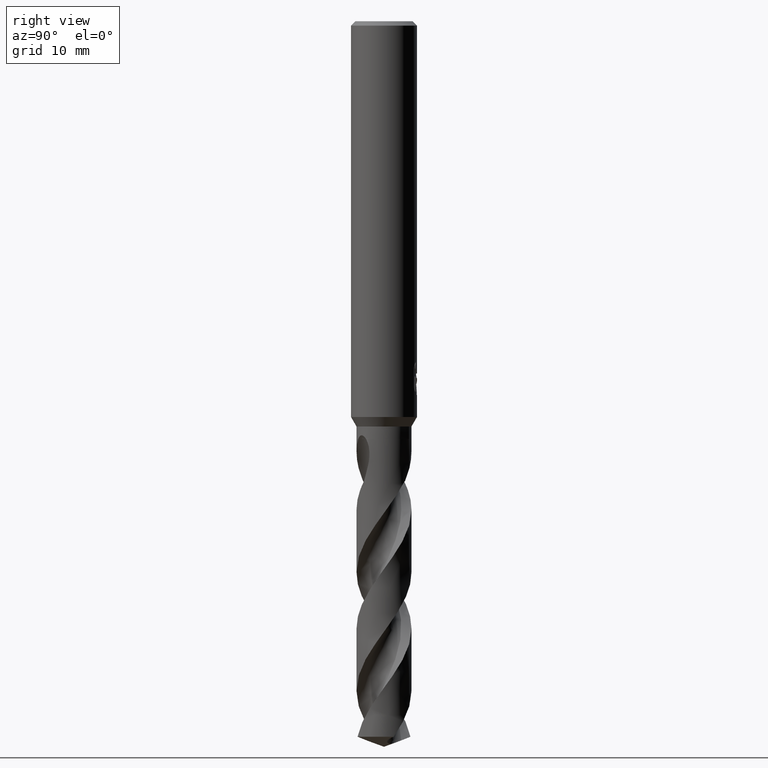
[diagram: clean part render]
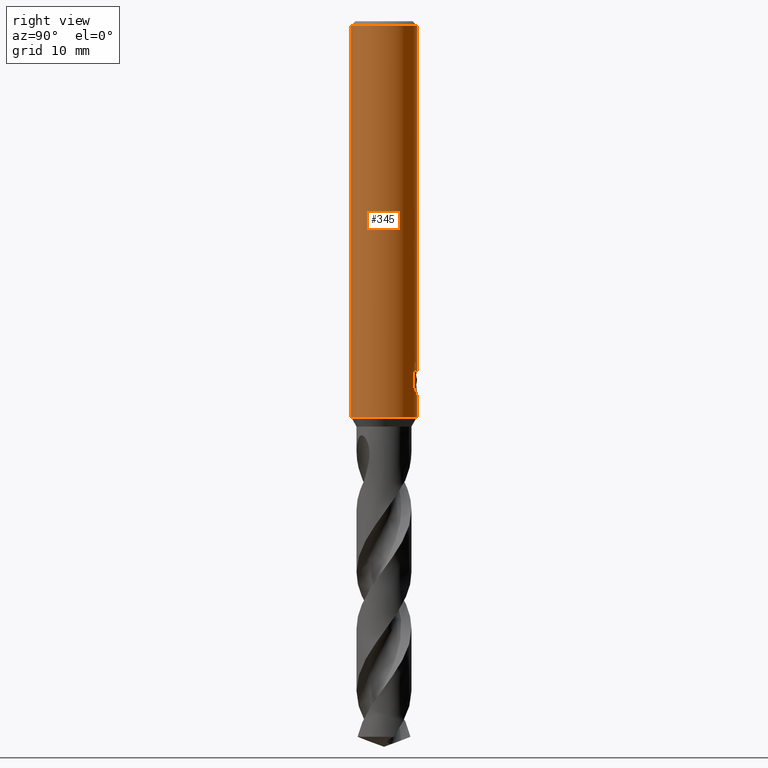
[diagram: same view with one face highlighted and labeled with its STEP entity id]
A machine part, right view. The second image highlights one B-rep face of the part: STEP entity #345.
In plain terms, the highlighted cylindrical surface (edge-blend (fillet) strip) has radius 3 mm, axis along (-0, -0, 1).
Its self-contained STEP definition (entity closure, byte-faithful):
#273=EDGE_CURVE('',#671,#275,#764,.T.);
#275=VERTEX_POINT('',#766);
#295=VERTEX_POINT('',#789);
#301=EDGE_CURVE('',#731,#353,#796,.T.);
#307=VERTEX_POINT('',#802);
#323=EDGE_CURVE('',#671,#565,#819,.T.);
#345=ADVANCED_FACE('',(#844),#845,.T.);
#353=VERTEX_POINT('',#853);
#393=EDGE_CURVE('',#417,#307,#896,.T.);
#417=VERTEX_POINT('',#921);
#427=EDGE_CURVE('',#295,#275,#933,.T.);
#459=EDGE_CURVE('',#597,#713,#969,.T.);
#465=EDGE_CURVE('',#417,#483,#975,.T.);
#483=VERTEX_POINT('',#994);
#491=EDGE_CURVE('',#307,#709,#1004,.T.);
#531=EDGE_CURVE('',#353,#565,#1049,.T.);
#565=VERTEX_POINT('',#1084);
#597=VERTEX_POINT('',#1118);
#599=EDGE_CURVE('',#709,#597,#1120,.T.);
#643=EDGE_CURVE('',#713,#731,#1170,.T.);
#671=VERTEX_POINT('',#1200);
#693=EDGE_CURVE('',#483,#295,#1223,.T.);
#709=VERTEX_POINT('',#1242);
#713=VERTEX_POINT('',#1246);
#731=VERTEX_POINT('',#1266);
#764=CIRCLE('',#1347,3.0);
#766=CARTESIAN_POINT('',(3.67381906146713E-016,-3.0,-0.399999999999999));
#789=CARTESIAN_POINT('',(3.67381906146713E-016,-3.0,-36.0));
#796=B_SPLINE_CURVE_WITH_KNOTS('',3,(#1480,#1481,#1482,#1483,#1484,#1485,#1486,#1487),.UNSPECIFIED.,.F.,.F.,(4,2,2,4),(0.629580638580865,1.25916127716173,1.57221094126725,1.88526060537277),.UNSPECIFIED.);
#802=CARTESIAN_POINT('',(0.29010312703583,2.98594041730307,-33.9998328990228));
#819=LINE('',#1625,#1626);
#844=FACE_OUTER_BOUND('',#1888,.T.);
#845=CYLINDRICAL_SURFACE('',#1889,3.0);
#853=CARTESIAN_POINT('',(0.799431726384364,2.89152363207533,-31.000000276873));
#896=B_SPLINE_CURVE_WITH_KNOTS('',3,(#2748,#2749,#2750,#2751,#2752,#2753,#2754,#2755,#2756,#2757,#2758,#2759,#2760,#2761,#2762,#2763),.UNSPECIFIED.,.F.,.F.,(4,2,2,2,2,2,2,4),(5.66023402257373,6.29060333517104,6.60504483258975,6.91948633000846,7.23392782742717,7.54836932484587,7.86141901111221,8.17446869737855),.UNSPECIFIED.);
#921=CARTESIAN_POINT('',(-2.46407913303377E-016,3.0,-34.0310253601033));
#933=LINE('',#3547,#3548);
#969=B_SPLINE_CURVE_WITH_KNOTS('',3,(#3613,#3614,#3615,#3616,#3617,#3618,#3619,#3620),.UNSPECIFIED.,.F.,.F.,(4,2,2,4),(8.17446522132897,8.48751487521068,8.80056452909238,9.43014514523744),.UNSPECIFIED.);
#975=LINE('',#3682,#3683);
#994=CARTESIAN_POINT('',(0.0,3.0,-36.0));
#1004=ELLIPSE('',#3831,9.14398372010932,3.0);
#1049=B_SPLINE_CURVE_WITH_KNOTS('',3,(#3926,#3927,#3928,#3929,#3930,#3931,#3932,#3933,#3934,#3935,#3936,#3937,#3938,#3939,#3940,#3941,#3942,#3943,#3944,#3945,#3946,#3947,#3948,#3949,#3950,#3951,#3952),.UNSPECIFIED.,.F.,.F.,(4,2,3,2,2,2,2,2,2,2,2,2,4),(-0.54422824842136,-0.27211412421068,0.0,0.272114124210678,0.544228248421357,0.817906359646673,1.09158447087199,1.36255924571499,1.63353402055798,1.90530456554772,2.17707511053746,2.4488456555272,2.72061620051693),.UNSPECIFIED.);
#1084=CARTESIAN_POINT('',(-1.20768269592175E-015,3.0,-32.0232688117743));
#1118=CARTESIAN_POINT('',(0.873560781758956,2.86999852971612,-33.7587351791531));
#1120=LINE('',#4363,#4364);
#1170=LINE('',#4725,#4726);
#1200=CARTESIAN_POINT('',(0.0,3.0,-0.399999999999999));
#1223=CIRCLE('',#4949,3.0);
#1242=CARTESIAN_POINT('',(0.873560781758957,2.86999852971612,-32.3198931596091));
#1246=CARTESIAN_POINT('',(1.33721006514658,2.68549236485056,-33.2901657003257));
#1266=CARTESIAN_POINT('',(1.33721006514658,2.68549236485057,-31.5150484364821));
#1347=AXIS2_PLACEMENT_3D('',#5183,#5184,#5185);
#1480=CARTESIAN_POINT('',(1.47371594887933,2.61307506628086,-31.7730763684241));
#1481=CARTESIAN_POINT('',(1.38997410067862,2.66030349611674,-31.5732652606136));
#1482=CARTESIAN_POINT('',(1.2654392594963,2.72440179761724,-31.3929794688919));
#1483=CARTESIAN_POINT('',(1.05168354029617,2.81066216411606,-31.1794481382038));
#1484=CARTESIAN_POINT('',(0.971352579549231,2.83988055521709,-31.1125077441098));
#1485=CARTESIAN_POINT('',(0.795685568183073,2.89401656493242,-30.9938021282019));
#1486=CARTESIAN_POINT('',(0.700343019183212,2.91889351702519,-30.9420279807093));
#1487=CARTESIAN_POINT('',(0.600330681290245,2.93932017192779,-30.9001776926585));
#1625=CARTESIAN_POINT('',(-3.67381906146713E-016,3.0,-18.2));
#1626=VECTOR('',#5239,1.0);
#1888=EDGE_LOOP('',(#5279,#5280,#5281,#5282,#5283,#5284,#5285,#5286,#5287,#5288,#5289,#5290));
#1889=AXIS2_PLACEMENT_3D('',#5291,#5292,#5293);
#2748=CARTESIAN_POINT('',(-1.53050642192579,2.58022287650581,-33.0319811255889));
#2749=CARTESIAN_POINT('',(-1.44691631248335,2.62980577312329,-33.2314887010961));
#2750=CARTESIAN_POINT('',(-1.32276760444366,2.69707077181617,-33.4113258593841));
#2751=CARTESIAN_POINT('',(-1.10973155101076,2.78826898930335,-33.6245951706909));
#2752=CARTESIAN_POINT('',(-1.02948996220254,2.81934349084513,-33.6916117853674));
#2753=CARTESIAN_POINT('',(-0.853932698223484,2.87738531454781,-33.8105216600777));
#2754=CARTESIAN_POINT('',(-0.758609991487907,2.90431263574779,-33.8624240602539));
#2755=CARTESIAN_POINT('',(-0.558469552260235,2.94934446690523,-33.9464055954533));
#2756=CARTESIAN_POINT('',(-0.453457041446381,2.96746268462387,-33.9785511641911));
#2757=CARTESIAN_POINT('',(-0.240810292537893,2.99223469602914,-34.0209924679526));
#2758=CARTESIAN_POINT('',(-0.133171317626829,2.99887501234033,-34.0312723335086));
#2759=CARTESIAN_POINT('',(0.0759830626177195,3.00085245803086,-34.0312723335086));
#2760=CARTESIAN_POINT('',(0.183273473896684,2.99629272230549,-34.0210815541729));
#2761=CARTESIAN_POINT('',(0.39543915272815,2.97573303917486,-33.9788816901513));
#2762=CARTESIAN_POINT('',(0.500318639064909,2.95974677710468,-33.9468871509919));
#2763=CARTESIAN_POINT('',(0.600330982089903,2.93932011049205,-33.9050368602192));
#3547=CARTESIAN_POINT('',(3.67381906146713E-016,-3.0,-18.2));
#3548=VECTOR('',#5359,1.0);
#3613=CARTESIAN_POINT('',(0.600330703923335,2.93932016730517,-33.9050364278969));
#3614=CARTESIAN_POINT('',(0.700343038443484,2.91889351228921,-33.8631861412044));
#3615=CARTESIAN_POINT('',(0.795685584213131,2.8940165604303,-33.8114119954011));
#3616=CARTESIAN_POINT('',(0.971352589628262,2.83988055167306,-33.692706383359));
#3617=CARTESIAN_POINT('',(1.0516835476539,2.81066216129401,-33.6257659914415));
#3618=CARTESIAN_POINT('',(1.26543925920527,2.72440179743877,-33.4122346680481));
#3619=CARTESIAN_POINT('',(1.3899740959159,2.66030349847411,-33.2319488826214));
#3620=CARTESIAN_POINT('',(1.47371594109741,2.61307507066968,-33.0321377817991));
#3682=CARTESIAN_POINT('',(-3.67381906146713E-016,3.0,-18.2));
#3683=VECTOR('',#5402,1.0);
#3831=AXIS2_PLACEMENT_3D('',#5440,#5441,#5442);
#3926=CARTESIAN_POINT('',(0.665621182276714,2.92522622060321,-30.8140957881762));
#3927=CARTESIAN_POINT('',(0.728850563417096,2.91083867849353,-30.877518087557));
#3928=CARTESIAN_POINT('',(0.783900459387161,2.89602337967411,-30.9578702196133));
#3929=CARTESIAN_POINT('',(0.857188692916628,2.87518328740958,-31.1345580124299));
#3930=CARTESIAN_POINT('',(0.875400981188567,2.86943777108584,-31.2309373045166));
#3931=CARTESIAN_POINT('',(0.875400981188567,2.86943777108584,-31.3216420125868));
#3932=CARTESIAN_POINT('',(0.875400981188567,2.86943777108584,-31.412346720657));
#3933=CARTESIAN_POINT('',(0.857188692916629,2.87518328740958,-31.5087260127437));
#3934=CARTESIAN_POINT('',(0.783900459387161,2.89602337967411,-31.6854138055602));
#3935=CARTESIAN_POINT('',(0.728850563417096,2.91083867849353,-31.7657659376165));
#3936=CARTESIAN_POINT('',(0.60202838769231,2.93969645569731,-31.8929750586276));
#3937=CARTESIAN_POINT('',(0.5214778595293,2.95568533572518,-31.9483797636259));
#3938=CARTESIAN_POINT('',(0.34429909105015,2.98152194310932,-32.0221641076746));
#3939=CARTESIAN_POINT('',(0.247628172090375,2.99115403786358,-32.0405166027747));
#3940=CARTESIAN_POINT('',(0.0663244946631877,3.00062654348629,-32.0405166027747));
#3941=CARTESIAN_POINT('',(-0.0299285908853379,3.00115720326599,-32.0224875186921));
#3942=CARTESIAN_POINT('',(-0.206881310600538,2.99416773126077,-31.949244373347));
#3943=CARTESIAN_POINT('',(-0.287593937381961,2.98687212067831,-31.8940404490632));
#3944=CARTESIAN_POINT('',(-0.415200117492864,2.97182576996222,-31.7666805419979));
#3945=CARTESIAN_POINT('',(-0.470604049431396,2.96309385107775,-31.6859121102136));
#3946=CARTESIAN_POINT('',(-0.544183869965539,2.95046729924835,-31.5086992019516));
#3947=CARTESIAN_POINT('',(-0.562348199187247,2.94682278104247,-31.41223219425));
#3948=CARTESIAN_POINT('',(-0.562348199187247,2.94682278104247,-31.2310518309235));
#3949=CARTESIAN_POINT('',(-0.54418386996554,2.95046729924835,-31.134584823222));
#3950=CARTESIAN_POINT('',(-0.4706040494314,2.96309385107775,-30.95737191496));
#3951=CARTESIAN_POINT('',(-0.415200117492863,2.97182576996222,-30.8766034831756));
#3952=CARTESIAN_POINT('',(-0.351303479704285,2.97935997575782,-30.812830162452));
#4363=CARTESIAN_POINT('',(0.873560781758957,2.86999852971612,-33.0393141693811));
#4364=VECTOR('',#5566,1.0);
#4725=CARTESIAN_POINT('',(1.33721006514658,2.68549236485056,-32.4026070684039));
#4726=VECTOR('',#5639,1.0);
#4949=AXIS2_PLACEMENT_3D('',#5674,#5675,#5676);
#5183=CARTESIAN_POINT('',(0.0,0.0,-0.399999999999999));
#5184=DIRECTION('',(0.0,0.0,-1.0));
#5185=DIRECTION('',(0.0,1.0,0.0));
#5239=DIRECTION('',(0.0,0.0,-1.0));
#5279=ORIENTED_EDGE('',*,*,#323,.F.);
#5280=ORIENTED_EDGE('',*,*,#273,.T.);
#5281=ORIENTED_EDGE('',*,*,#427,.F.);
#5282=ORIENTED_EDGE('',*,*,#693,.F.);
#5283=ORIENTED_EDGE('',*,*,#465,.F.);
#5284=ORIENTED_EDGE('',*,*,#393,.T.);
#5285=ORIENTED_EDGE('',*,*,#491,.T.);
#5286=ORIENTED_EDGE('',*,*,#599,.T.);
#5287=ORIENTED_EDGE('',*,*,#459,.T.);
#5288=ORIENTED_EDGE('',*,*,#643,.T.);
#5289=ORIENTED_EDGE('',*,*,#301,.T.);
#5290=ORIENTED_EDGE('',*,*,#531,.T.);
#5291=CARTESIAN_POINT('',(0.0,0.0,-18.2));
#5292=DIRECTION('',(-0.0,-0.0,1.0));
#5293=DIRECTION('',(0.0,1.0,0.0));
#5359=DIRECTION('',(-0.0,-0.0,1.0));
#5402=DIRECTION('',(0.0,0.0,-1.0));
#5440=CARTESIAN_POINT('',(0.0,0.0,-34.8351219173269));
#5441=DIRECTION('',(0.944648353914092,0.0,-0.328084573619969));
#5442=DIRECTION('',(0.328084573619969,-0.0,0.944648353914092));
#5566=DIRECTION('',(0.0,0.0,-1.0));
#5639=DIRECTION('',(-0.0,-0.0,1.0));
#5674=CARTESIAN_POINT('',(0.0,0.0,-36.0));
#5675=DIRECTION('',(0.0,0.0,-1.0));
#5676=DIRECTION('',(0.0,1.0,0.0));